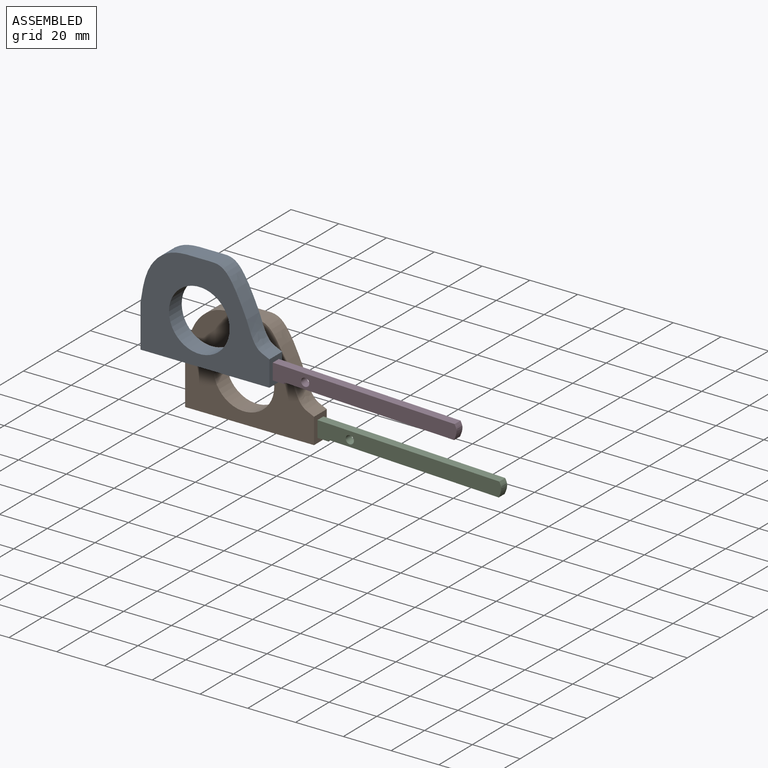
[diagram: assembled view]
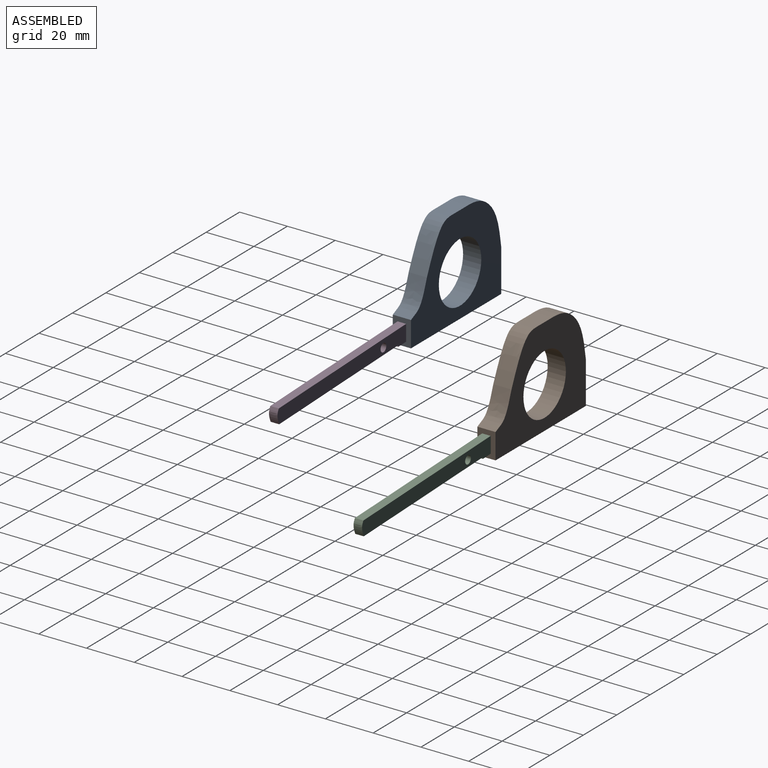
[diagram: assembled view, second angle]
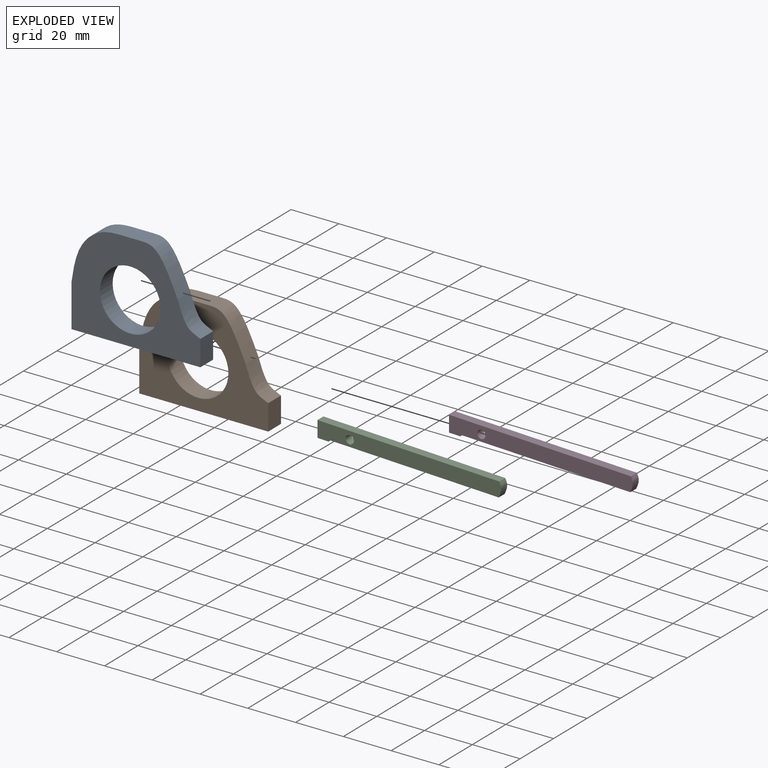
[diagram: exploded view]
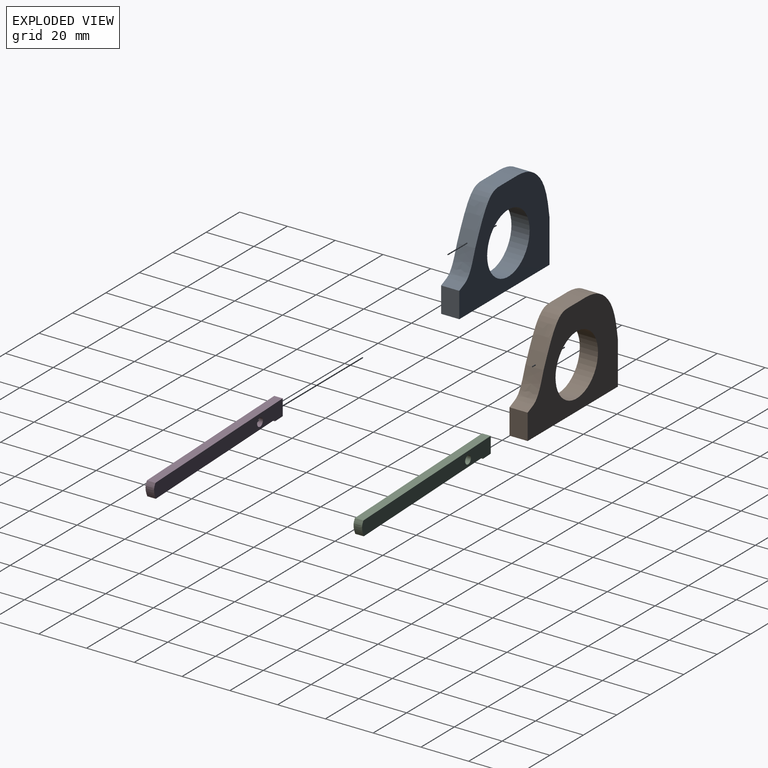
[diagram: exploded view, second angle]
ASSEMBLY  parts=4 mates=2
PART A: 8 faces, bbox 54x7.6x41.7 mm
  f0: extruded ~44.44x23.39mm, area 525.2mm2, adj f1,f5,f6,f7
  f1: plane 17.78x7.62mm, normal (-1,0,0), area 135.5mm2, adj f0,f2,f6,f7
  f2: plane 53.98x7.62mm, normal (0,0,-1), area 411.3mm2, adj f1,f3,f6,f7
  f3: plane 10.73x7.62mm, normal (1,0,0), area 81.8mm2, adj f2,f5,f6,f7
  f4: cylinder r=12.7mm len=25.4mm, axis (0,1,0), area 608mm2, adj f6,f7
  f5: extruded ~12.45x9.54mm, area 125.8mm2, adj f0,f3,f6,f7
  f6: plane 53.98x41.66mm, normal (0,-1,0), area 1283.8mm2, adj f0,f1,f2,f3,f4,f5
  f7: plane 53.98x41.66mm, normal (0,1,0), area 1283.8mm2, adj f0,f1,f2,f3,f4,f5
PART B: same geometry as A
PART C: 9 faces, bbox 77.2x3.6x6.7 mm
  f0: plane 3.56x0.65mm, normal (1,0,0), area 2.3mm2, adj f1,f6,f7,f8
  f1: plane 71.28x3.56mm, normal (0,0,-1), area 253.5mm2, adj f0,f2,f7,f8
  f2: extruded ~6.08x3.56mm, area 22.8mm2, adj f1,f3,f7,f8
  f3: plane 76.2x3.56mm, normal (0,0,1), area 271mm2, adj f2,f4,f7,f8
  f4: plane 6.73x3.56mm, normal (-1,0,-0.04), area 24mm2, adj f3,f6,f7,f8
  f5: cylinder r=1.72mm len=3.56mm, axis (0,1,0), area 38.4mm2, adj f7,f8
  f6: plane 4.66x3.56mm, normal (0,0,-1), area 16.6mm2, adj f0,f4,f7,f8
  f7: plane 77.17x6.73mm, normal (0,-1,0), area 460.1mm2, adj f0,f1,f2,f3,f4,f5,f6
  f8: plane 77.17x6.73mm, normal (0,1,0), area 460.1mm2, adj f0,f1,f2,f3,f4,f5,f6
PART D: same geometry as C
PLACE A rot(axis=(-0.84,-0.26,-0.48),0deg) t=(-15.93,-21.72,41.5)mm
PLACE B rot(axis=(-0.54,-0.23,0.81),0deg) t=(-20.02,10.83,6.25)mm fixed
PLACE C rot(axis=(0,1,0),2.2deg) t=(-19.19,8.8,8.35)mm
PLACE D rot(axis=(0,1,0),2.2deg) t=(-15.1,-23.75,43.6)mm
MATE fastened C.f4 <-> B.f3  axis (-1,0,0) through (-40.54,7.02,17.23)mm
MATE fastened D.f4 <-> A.f3  axis (-1,0,0) through (-36.46,-25.53,52.48)mm
